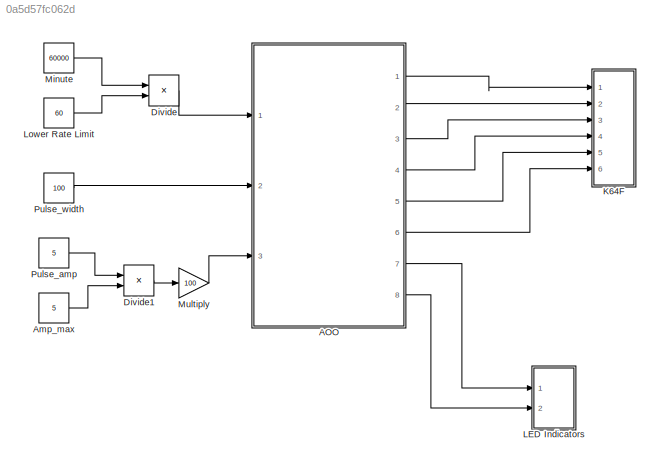
MODEL slx_0a5d57fc062d
KIND model
CONFIG AbsTol = auto
CONFIG EnableMultiTasking = on
CONFIG FixedStep = 1e-3
CONFIG MaxStep = auto
CONFIG MinStep = auto
CONFIG RelTol = 1e-3
CONFIG SampleTimeConstraint = Unconstrained
CONFIG Solver = FixedStepAuto
CONFIG SolverName = FixedStepAuto
CONFIG StartTime = 0.0
CONFIG StopTime = 10.0
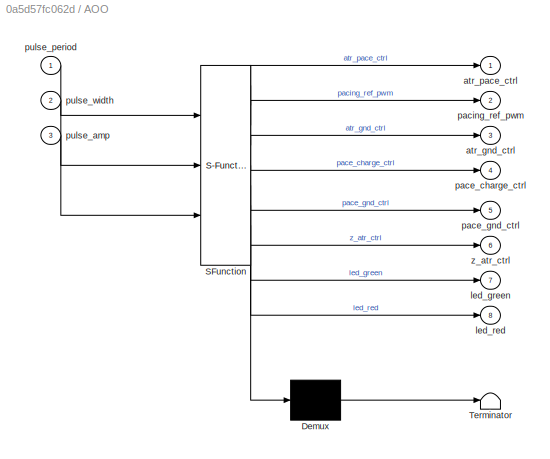
BLOCK [SubSystem] AOO
  ErrorFcn = Stateflow.Translate.translate
  PermitHierarchicalResolution = ExplicitOnly
  Ports = [3, 8]
  RequestExecContextInheritance = off
  SFBlockType = Chart
  TreatAsAtomicUnit = on
BLOCK [Demux] AOO/ Demux 
  Outputs = 1
  Ports = [1, 1]
BLOCK [S-Function] AOO/ SFunction 
  EnableBusSupport = on
  FunctionName = sf_sfun
  PortCounts = [3 9]
  Ports = [3, 9]
  SFcnIsStateOwnerBlock = off
  SFunctionDeploymentMode = off
  Tag = Stateflow S-Function 1
BLOCK [Terminator] AOO/ Terminator 
BLOCK [Outport] AOO/atr_gnd_ctrl
  Port = 3
BLOCK [Outport] AOO/atr_pace_ctrl
BLOCK [Outport] AOO/led_green
  Port = 7
BLOCK [Outport] AOO/led_red
  Port = 8
BLOCK [Outport] AOO/pace_charge_ctrl
  Port = 4
BLOCK [Outport] AOO/pace_gnd_ctrl
  Port = 5
BLOCK [Outport] AOO/pacing_ref_pwm
  Port = 2
BLOCK [Inport] AOO/pulse_amp
  Port = 3
BLOCK [Inport] AOO/pulse_period
BLOCK [Inport] AOO/pulse_width
  Port = 2
BLOCK [Outport] AOO/z_atr_ctrl
  Port = 6
BLOCK [Constant] Amp_max
  Value = 5
BLOCK [Product] Divide
  Inputs = */
  Ports = [2, 1]
BLOCK [Product] Divide1
  Inputs = */
  Ports = [2, 1]
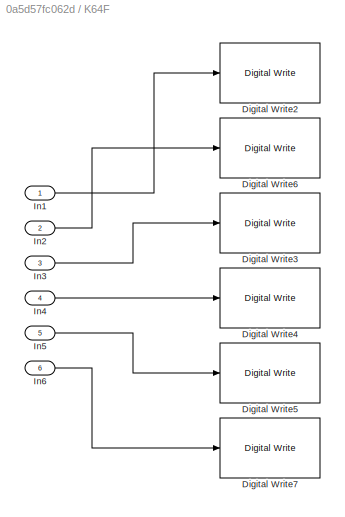
BLOCK [SubSystem] K64F
  Ports = [6]
  RequestExecContextInheritance = off
BLOCK [Reference] K64F/Digital Write2  REF=frdmk64flib/Digital Write
  Ports = [1]
  SourceBlock = frdmk64flib/Digital Write
  SourceProductBaseCode = EC_FRDM_K64F
  SourceType = freedomk64f.DigitalWrite
BLOCK [Reference] K64F/Digital Write3  REF=frdmk64flib/Digital Write
  Ports = [1]
  SourceBlock = frdmk64flib/Digital Write
  SourceProductBaseCode = EC_FRDM_K64F
  SourceType = freedomk64f.DigitalWrite
BLOCK [Reference] K64F/Digital Write4  REF=frdmk64flib/Digital Write
  Ports = [1]
  SourceBlock = frdmk64flib/Digital Write
  SourceProductBaseCode = EC_FRDM_K64F
  SourceType = freedomk64f.DigitalWrite
BLOCK [Reference] K64F/Digital Write5  REF=frdmk64flib/Digital Write
  Ports = [1]
  SourceBlock = frdmk64flib/Digital Write
  SourceProductBaseCode = EC_FRDM_K64F
  SourceType = freedomk64f.DigitalWrite
BLOCK [Reference] K64F/Digital Write6  REF=frdmk64flib/Digital Write
  Ports = [1]
  SourceBlock = frdmk64flib/Digital Write
  SourceProductBaseCode = EC_FRDM_K64F
  SourceType = freedomk64f.DigitalWrite
BLOCK [Reference] K64F/Digital Write7  REF=frdmk64flib/Digital Write
  Ports = [1]
  SourceBlock = frdmk64flib/Digital Write
  SourceProductBaseCode = EC_FRDM_K64F
  SourceType = freedomk64f.DigitalWrite
BLOCK [Inport] K64F/In1
BLOCK [Inport] K64F/In2
  Port = 2
BLOCK [Inport] K64F/In3
  Port = 3
BLOCK [Inport] K64F/In4
  Port = 4
BLOCK [Inport] K64F/In5
  Port = 5
BLOCK [Inport] K64F/In6
  Port = 6
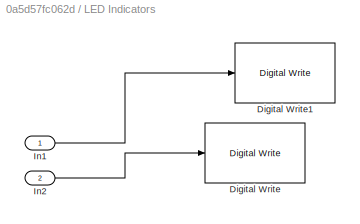
BLOCK [SubSystem] LED Indicators
  Ports = [2]
  RequestExecContextInheritance = off
BLOCK [Reference] LED Indicators/Digital Write  REF=frdmk64flib/Digital Write
  Ports = [1]
  SourceBlock = frdmk64flib/Digital Write
  SourceProductBaseCode = EC_FRDM_K64F
  SourceType = freedomk64f.DigitalWrite
BLOCK [Reference] LED Indicators/Digital Write1  REF=frdmk64flib/Digital Write
  Ports = [1]
  SourceBlock = frdmk64flib/Digital Write
  SourceProductBaseCode = EC_FRDM_K64F
  SourceType = freedomk64f.DigitalWrite
BLOCK [Inport] LED Indicators/In1
BLOCK [Inport] LED Indicators/In2
  Port = 2
BLOCK [Constant] Lower Rate Limit
  Value = 60
BLOCK [Constant] Minute
  Value = 60000
BLOCK [Gain] Multiply
  Gain = 100
BLOCK [Constant] Pulse_amp
  Value = 5
BLOCK [Constant] Pulse_width
  Value = 100
LINE AOO:1 -> K64F:1
LINE AOO:2 -> K64F:2
LINE AOO:3 -> K64F:3
LINE AOO:4 -> K64F:4
LINE AOO:5 -> K64F:5
LINE AOO:6 -> K64F:6
LINE AOO:7 -> LED Indicators:1
LINE AOO:8 -> LED Indicators:2
LINE Amp_max:1 -> Divide1:2
LINE Divide1:1 -> Multiply:1
LINE Divide:1 -> AOO:1
LINE K64F/In1:1 -> K64F/Digital Write2:1
LINE K64F/In2:1 -> K64F/Digital Write6:1
LINE K64F/In3:1 -> K64F/Digital Write3:1
LINE K64F/In4:1 -> K64F/Digital Write4:1
LINE K64F/In5:1 -> K64F/Digital Write5:1
LINE K64F/In6:1 -> K64F/Digital Write7:1
LINE LED Indicators/In1:1 -> LED Indicators/Digital Write1:1
LINE LED Indicators/In2:1 -> LED Indicators/Digital Write:1
LINE Lower Rate Limit:1 -> Divide:2
LINE Minute:1 -> Divide:1
LINE Multiply:1 -> AOO:3
LINE Pulse_amp:1 -> Divide1:1
LINE Pulse_width:1 -> AOO:2
CHART AOO states=3 transitions=4
  STATE_LABEL 'AOO_Entry\n\n% Initial state when AOO is activated\n% Charging C22\nentry:\natr_pace_ctrl = false;\natr_gnd_ctrl = true;\npace_charge_ctrl = true;\npace_gnd_ctrl = true;\npacing_ref_pwm = pulse_amp;\nz_atr_ctrl = 0;\n% LED indicator\nled_green = true;\nled_red = false;\n'
  STATE_LABEL 'AOO_Pace\n\n% Discharging current into the heart\nentry:\npace_charge_ctrl = false;\natr_gnd_ctrl = false;\natr_pace_ctrl = true;\n% LED indicator\nled_green = false;\nled_red = true;'
  STATE_LABEL 'AOO_Charge\n\n% Charging C22 and C21 for cycles\nentry:\natr_pace_ctrl = false;\npace_charge_ctrl = true;\natr_gnd_ctrl = true;\n% LED indicator\nled_green = true;\nled_red = false;'
CHART  states=0 transitions=0
